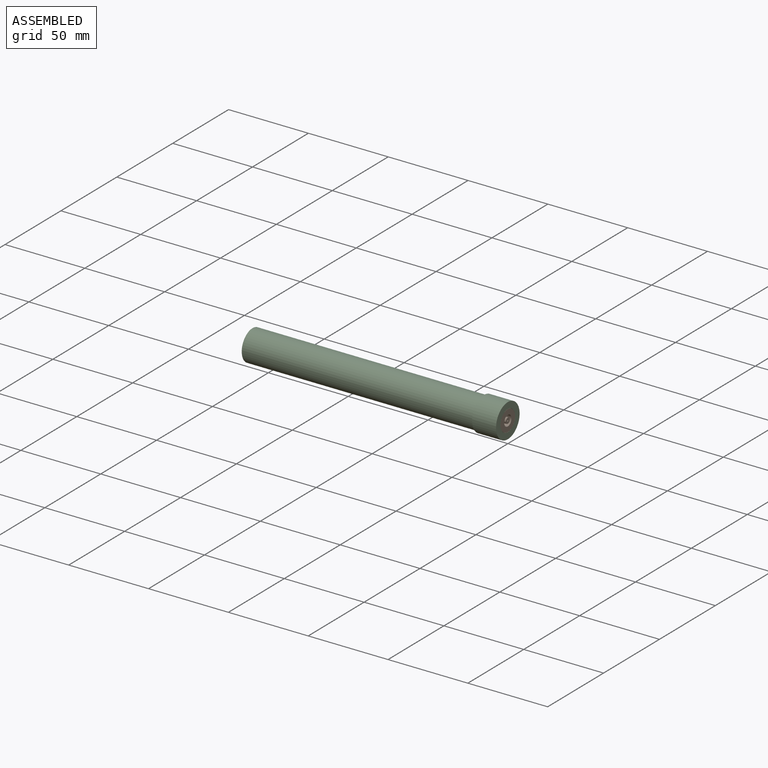
[diagram: assembled view]
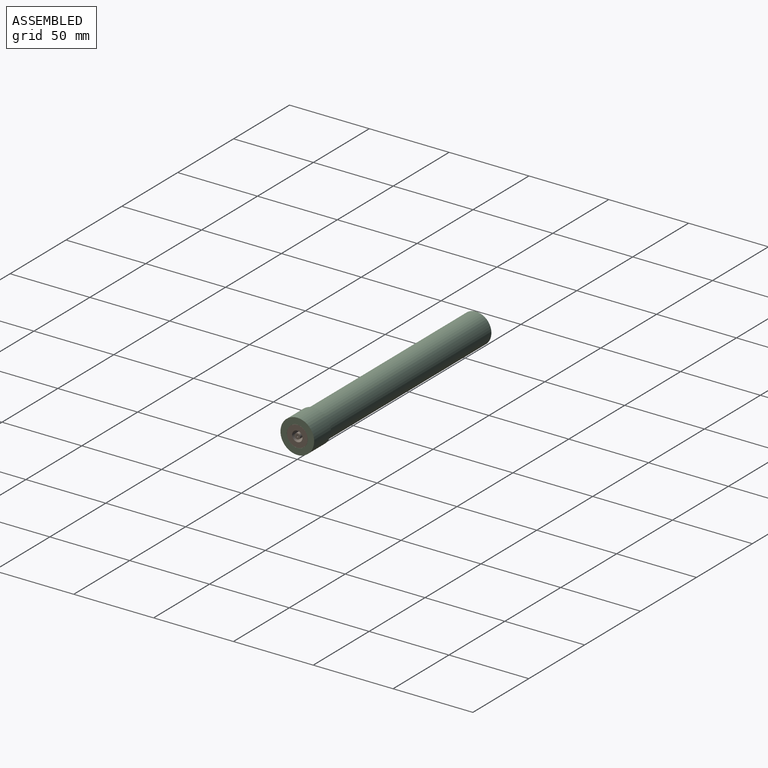
[diagram: assembled view, second angle]
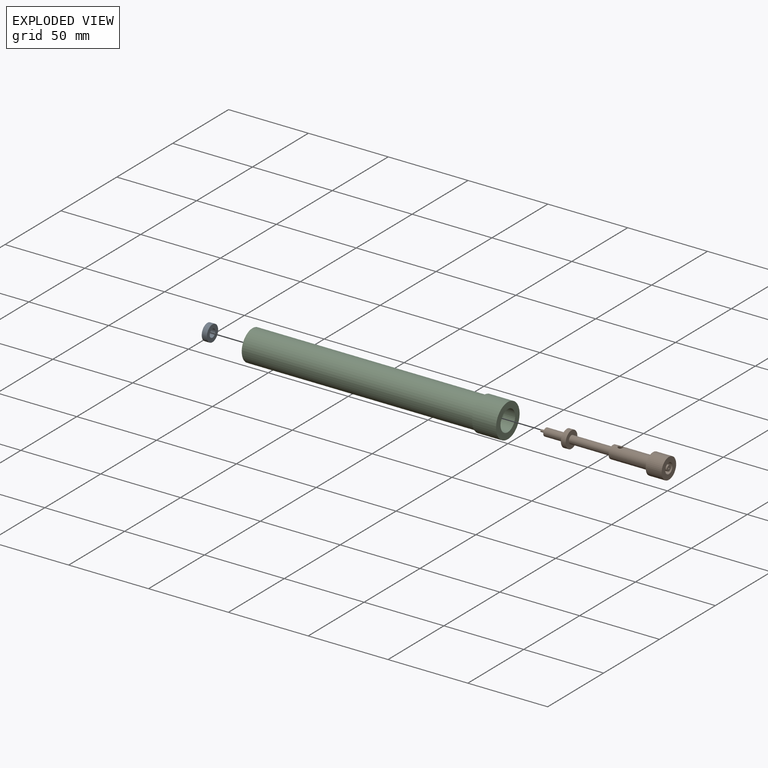
[diagram: exploded view]
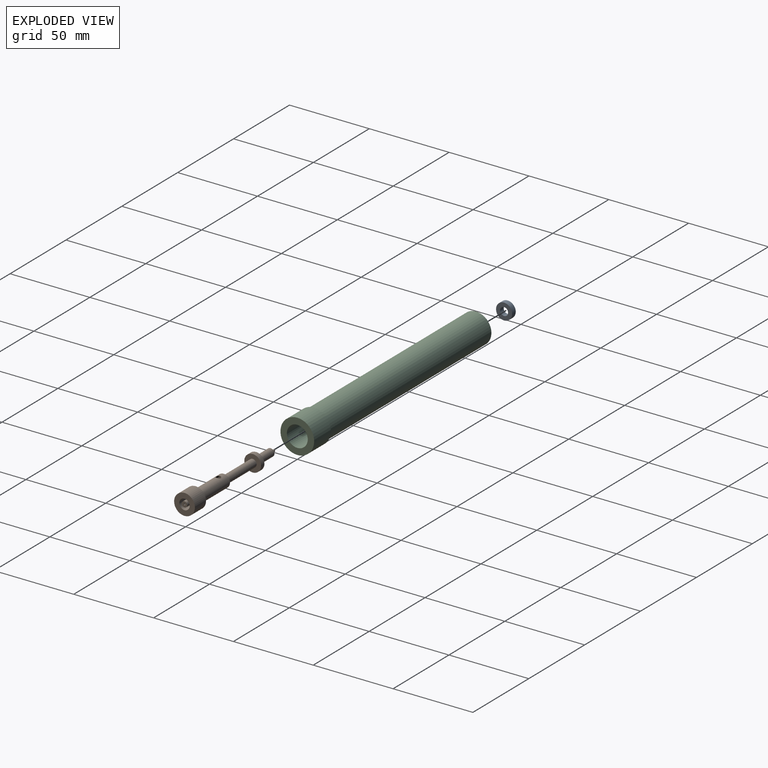
[diagram: exploded view, second angle]
ASSEMBLY  parts=3 mates=2
PART A: 4 faces, bbox 3.2x10.1x10.1 mm
  f0: cylinder r=2.5mm len=5mm, axis (-1,0,0), area 50.3mm2, adj f2,f3
  f1: cylinder r=5.05mm len=10.1mm, axis (-1,0,0), area 101.5mm2, adj f2,f3
  f2: plane 10.1x10.1mm, normal (1,0,0), area 60.5mm2, adj f0,f1
  f3: plane 10.1x10.1mm, normal (-1,0,0), area 60.5mm2, adj f0,f1
PART B: 20 faces, bbox 80x13x13 mm
  f0: plane 3.5x3.5mm, normal (1,0,0), area 8.8mm2, adj f15,f16
  f1: cylinder r=2.45mm len=26mm, axis (1,0,0), area 400.2mm2, adj f2,f14
  f2: plane 10.5x10.5mm, normal (1,0,0), area 67.7mm2, adj f1,f3
  f3: cylinder r=5.25mm len=10.5mm, axis (1,0,0), area 99mm2, adj f2,f4
  f4: plane 10.5x10.5mm, normal (-1,0,0), area 36.3mm2, adj f3,f5
  f5: cone r=2.44mm half-angle=57.3deg, axis (1,0,0), area 37.5mm2, adj f4,f6
  f6: cylinder r=2.44mm len=12mm, axis (1,0,0), area 184mm2, adj f5,f7
  f7: plane 4.88x4.88mm, normal (-1,0,0), area 16.9mm2, adj f6,f8
  f8: cylinder r=0.75mm len=3mm, axis (1,0,0), area 14.1mm2, adj f7,f9
  f9: plane 1.5x1.5mm, normal (-1,0,0), area 1mm2, adj f8,f15
  f10: plane 13x13mm, normal (1,0,0), area 99.5mm2, adj f11,f17
  f11: cylinder r=6.5mm len=13mm, axis (1,0,0), area 408.4mm2, adj f10,f12
  f12: plane 13x13mm, normal (-1,0,0), area 82.5mm2, adj f11,f13
  f13: cylinder r=4mm len=25mm, axis (1,0,0), area 621.1mm2, adj f12,f14,f19
  f14: plane 8x8mm, normal (-1,0,0), area 31.4mm2, adj f1,f13
  f15: cylinder r=0.5mm len=80mm, axis (-1,0,0), area 251.3mm2, adj f0,f9
  f16: cylinder r=1.75mm len=34mm, axis (1,0,0), area 373.8mm2, adj f0,f18
  f17: cylinder r=3.25mm len=34mm, axis (1,0,0), area 687mm2, adj f10,f18,f19
  f18: plane 6.5x6.5mm, normal (1,0,0), area 23.6mm2, adj f16,f17
  f19: cylinder r=1.5mm len=3mm, axis (0,0,1), area 7.4mm2, adj f13,f17
PART C: 11 faces, bbox 160x21.1x21.1 mm
  f0: cylinder r=2.45mm len=30mm, axis (1,0,0), area 461.8mm2, adj f1,f9
  f1: plane 10.1x10mm, normal (1,0,0), area 59.7mm2, adj f0,f2,f10
  f2: cylinder r=5.05mm len=10.1mm, axis (1,0,0), area 59.4mm2, adj f1,f3,f10
  f3: cone r=5.05mm half-angle=56.3deg, axis (1,0,0), area 63.8mm2, adj f2,f4,f10
  f4: cylinder r=6.55mm len=127mm, axis (1,0,0), area 5226.7mm2, adj f3,f5
  f5: plane 21.1x21.1mm, normal (1,0,0), area 214.9mm2, adj f4,f6
  f6: cylinder r=10.55mm len=21.1mm, axis (1,0,0), area 994.3mm2, adj f5,f7
  f7: plane 21.1x21.1mm, normal (-1,0,0), area 63.1mm2, adj f6,f8
  f8: cylinder r=9.55mm len=145mm, axis (1,0,0), area 8700.6mm2, adj f7,f9
  f9: plane 19.1x19.1mm, normal (-1,0,0), area 264.5mm2, adj f0,f8,f10
  f10: cylinder r=1mm len=32.63mm, axis (-1,0,0), area 196.3mm2, adj f1,f2,f3,f9
PLACE A t=(-80,0,0)mm
PLACE B t=(-80,0,0)mm
PLACE C at identity
MATE fastened B.f1 <-> C.f0  axis (1,0,0) through (0,0,0)mm
MATE fastened B.f1 <-> A.f1  axis (1,0,0) through (-71,0,0)mm
